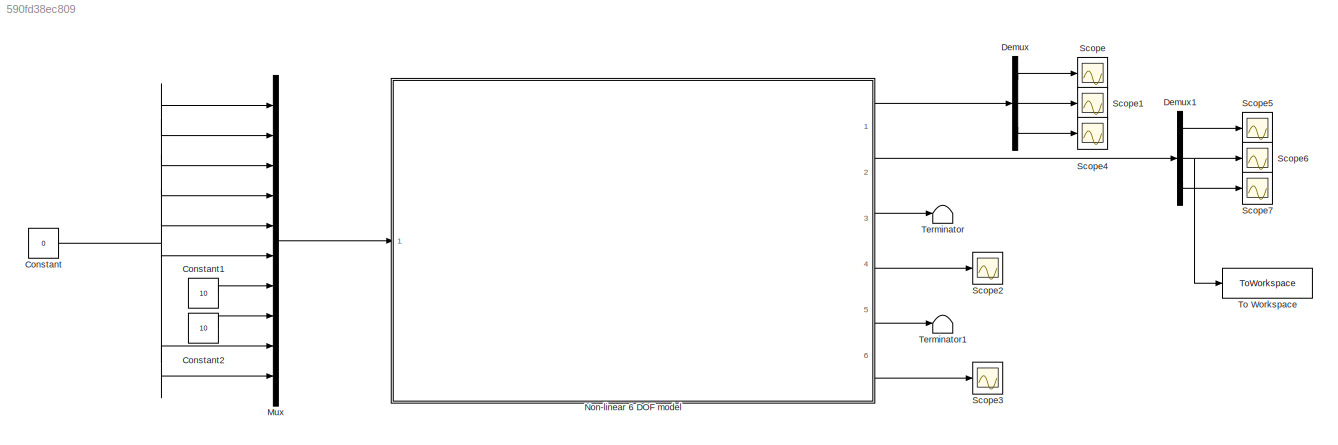
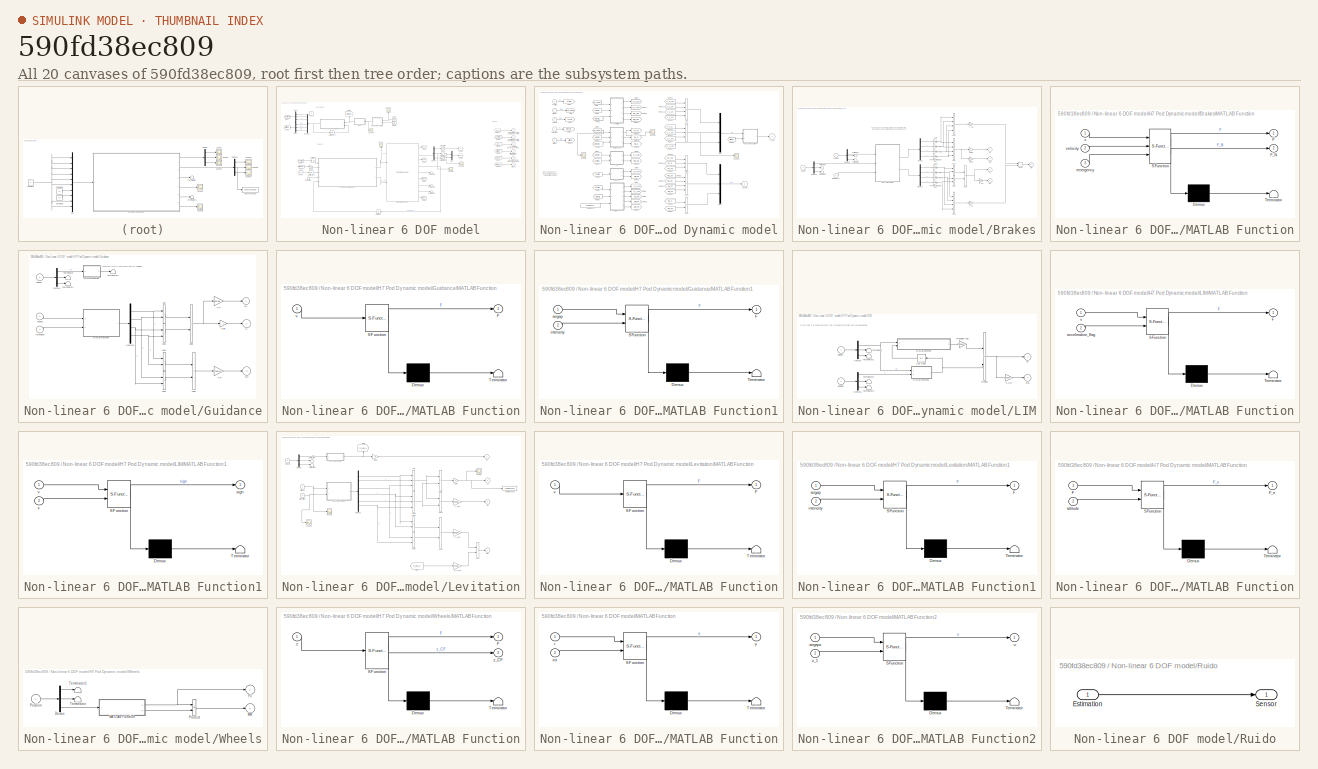
[diagram: thumbnail index - all 20 canvases of the model, root first then tree order]
MODEL slx_590fd38ec809
KIND model
CONFIG AbsTol = auto
CONFIG EnableMultiTasking = off
CONFIG FixedStep = auto
CONFIG MaxStep = 1e-4
CONFIG MinStep = auto
CONFIG RelTol = 1e-7
CONFIG SampleTimeConstraint = Unconstrained
CONFIG SolverName = VariableStepAuto
CONFIG StartTime = 0.0
CONFIG StopTime = 8
BLOCK [Constant] Constant
  Value = 0
BLOCK [Constant] Constant1
  Value = 10
BLOCK [Constant] Constant2
  Value = 10
BLOCK [Demux] Demux
  Outputs = 3
  Ports = [1, 3]
BLOCK [Demux] Demux1
  Outputs = 3
  Ports = [1, 3]
BLOCK [Mux] Mux
  DisplayOption = bar
  Inputs = 10
  Ports = [10, 1]
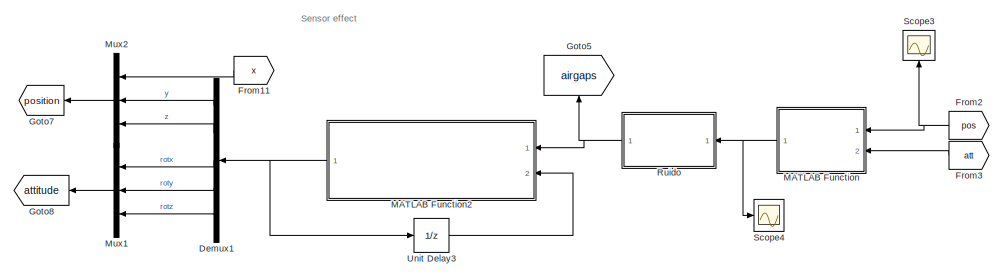
[diagram: Non-linear 6 DOF model - part 1/3, top left region]
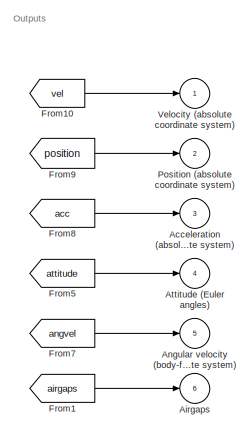
[diagram: Non-linear 6 DOF model - part 2/3, middle right region]
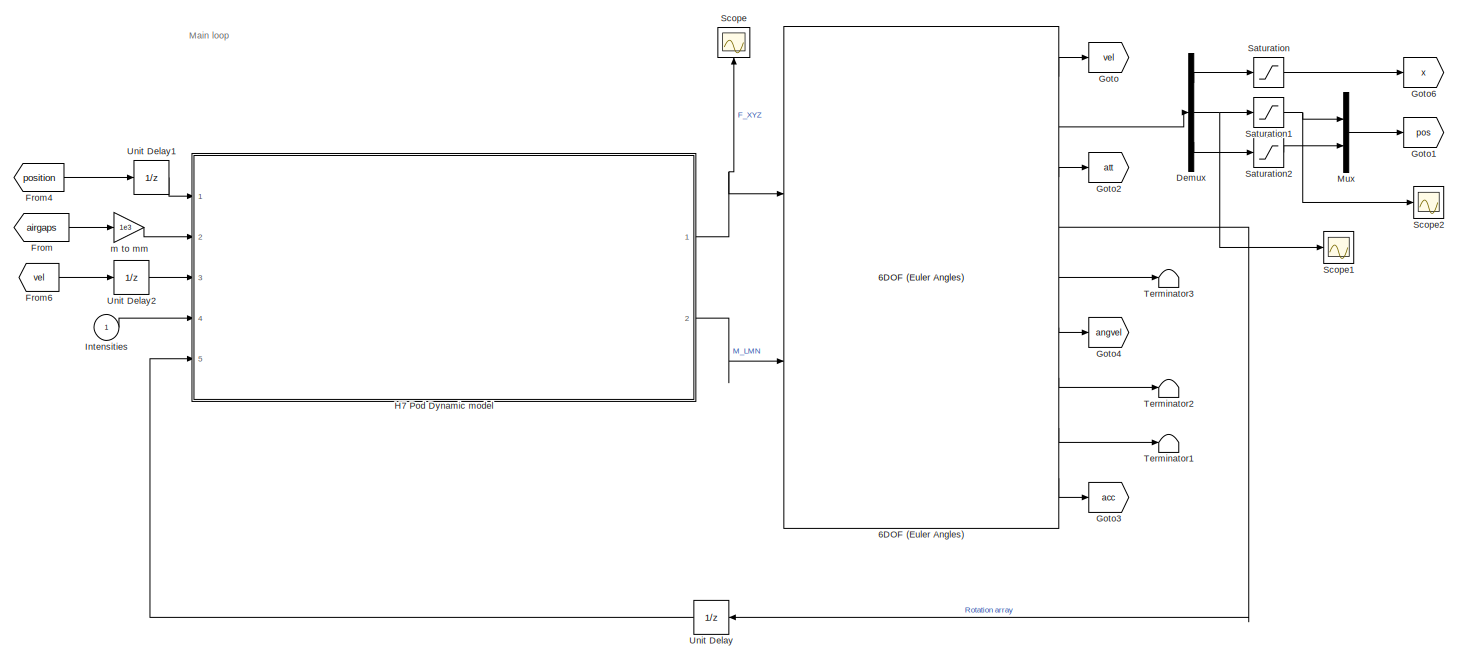
[diagram: Non-linear 6 DOF model - part 3/3, central region]
BLOCK [SubSystem] Non-linear 6 DOF model
  AncestorBlock = libH7_6DOF/Non-linear 6 DOF model
  Ports = [1, 6]
  RequestExecContextInheritance = off
BLOCK [Reference] Non-linear 6 DOF model/6DOF (Euler Angles)  REF=shared6dof/6DOF (Euler Angles)
  Ports = [2, 9]
  SourceBlock = shared6dof/6DOF (Euler Angles)
  SourceProductBaseCode = AE,PW,DR,MT,VE
  SourceType = 6DOF EoM (Body Axis)
BLOCK [Outport] Non-linear 6 DOF model/Acceleration (absolute coordinate system)
  Port = 3
BLOCK [Outport] Non-linear 6 DOF model/Airgaps
  Port = 6
BLOCK [Outport] Non-linear 6 DOF model/Angular velocity (body-fixed coordinate system)
  Port = 5
BLOCK [Outport] Non-linear 6 DOF model/Attitude (Euler angles)
  Port = 4
BLOCK [Demux] Non-linear 6 DOF model/Demux
  Outputs = 3
  Ports = [1, 3]
BLOCK [Demux] Non-linear 6 DOF model/Demux1
  NameLocation = top
  Outputs = 5
  Ports = [1, 5]
BLOCK [From] Non-linear 6 DOF model/From
  GotoTag = airgaps
BLOCK [From] Non-linear 6 DOF model/From1
  GotoTag = airgaps
BLOCK [From] Non-linear 6 DOF model/From10
  GotoTag = vel
BLOCK [From] Non-linear 6 DOF model/From11
  GotoTag = x
  NameLocation = top
BLOCK [From] Non-linear 6 DOF model/From2
  GotoTag = pos
  NameLocation = top
BLOCK [From] Non-linear 6 DOF model/From3
  GotoTag = att
  NameLocation = top
BLOCK [From] Non-linear 6 DOF model/From4
  GotoTag = position
BLOCK [From] Non-linear 6 DOF model/From5
  GotoTag = attitude
BLOCK [From] Non-linear 6 DOF model/From6
  GotoTag = vel
BLOCK [From] Non-linear 6 DOF model/From7
  GotoTag = angvel
BLOCK [From] Non-linear 6 DOF model/From8
  GotoTag = acc
BLOCK [From] Non-linear 6 DOF model/From9
  GotoTag = position
BLOCK [Goto] Non-linear 6 DOF model/Goto
  GotoTag = vel
BLOCK [Goto] Non-linear 6 DOF model/Goto1
  GotoTag = pos
BLOCK [Goto] Non-linear 6 DOF model/Goto2
  GotoTag = att
BLOCK [Goto] Non-linear 6 DOF model/Goto3
  GotoTag = acc
BLOCK [Goto] Non-linear 6 DOF model/Goto4
  GotoTag = angvel
BLOCK [Goto] Non-linear 6 DOF model/Goto5
  GotoTag = airgaps
  NameLocation = right
BLOCK [Goto] Non-linear 6 DOF model/Goto6
  GotoTag = x
BLOCK [Goto] Non-linear 6 DOF model/Goto7
  GotoTag = position
  NameLocation = top
BLOCK [Goto] Non-linear 6 DOF model/Goto8
  GotoTag = attitude
  NameLocation = top
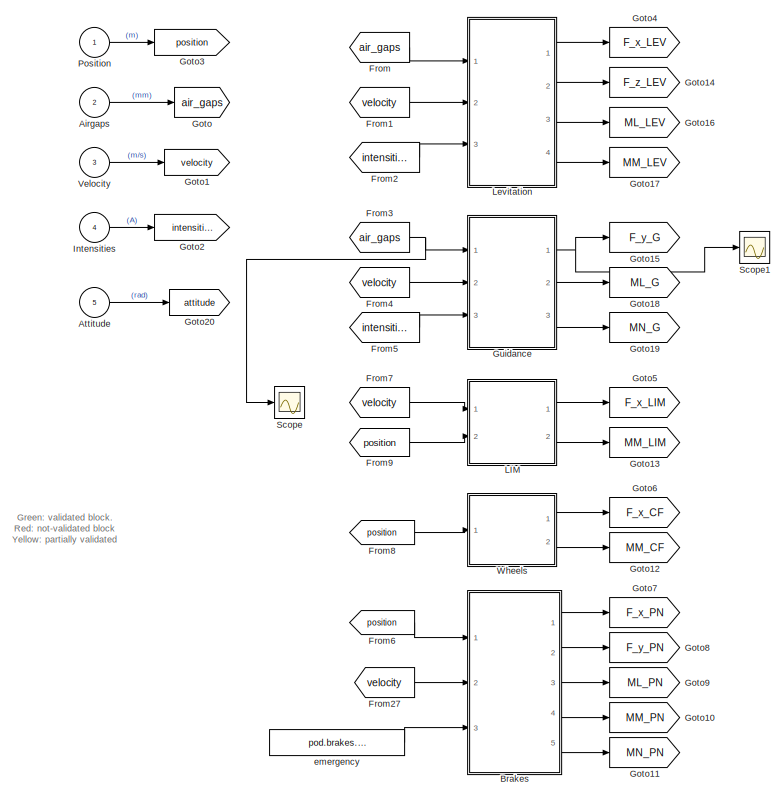
[diagram: Non-linear 6 DOF model/H7 Pod Dynamic model - part 1/2, left side, full height]
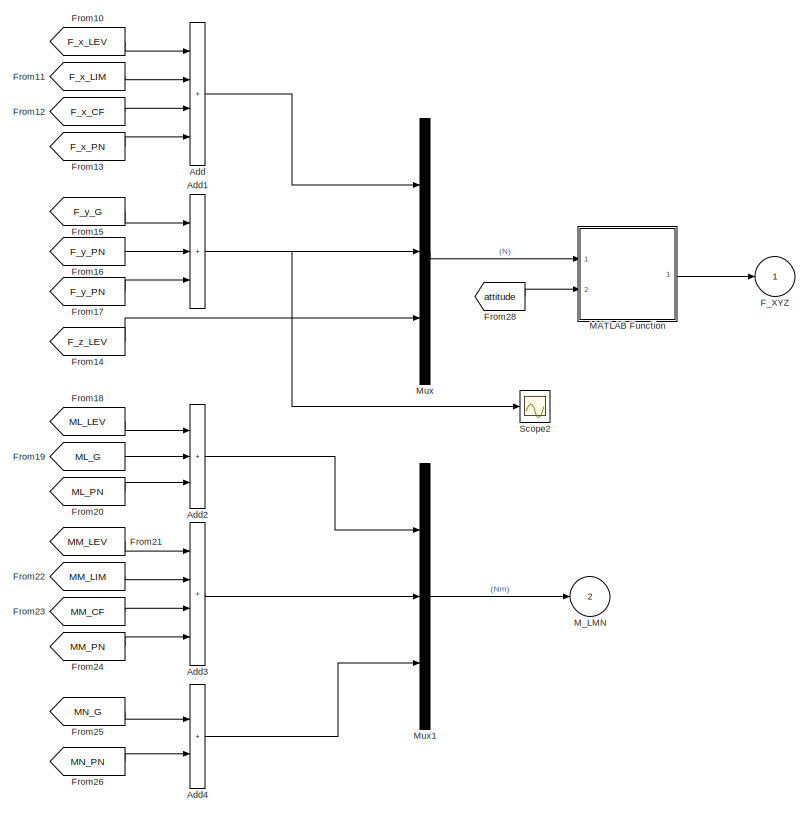
[diagram: Non-linear 6 DOF model/H7 Pod Dynamic model - part 2/2, right side, full height]
BLOCK [SubSystem] Non-linear 6 DOF model/H7 Pod Dynamic model
  AncestorBlock = libH7_6DOF/H7 Pod Dynamic model
  Ports = [5, 2]
  RequestExecContextInheritance = off
BLOCK [Sum] Non-linear 6 DOF model/H7 Pod Dynamic model/Add
  IconShape = rectangular
  Inputs = ++++
  Ports = [4, 1]
BLOCK [Sum] Non-linear 6 DOF model/H7 Pod Dynamic model/Add1
  IconShape = rectangular
  Inputs = +++
  Ports = [3, 1]
BLOCK [Sum] Non-linear 6 DOF model/H7 Pod Dynamic model/Add2
  IconShape = rectangular
  Inputs = +++
  Ports = [3, 1]
BLOCK [Sum] Non-linear 6 DOF model/H7 Pod Dynamic model/Add3
  IconShape = rectangular
  Inputs = ++++
  Ports = [4, 1]
BLOCK [Sum] Non-linear 6 DOF model/H7 Pod Dynamic model/Add4
  IconShape = rectangular
  Ports = [2, 1]
BLOCK [Inport] Non-linear 6 DOF model/H7 Pod Dynamic model/Airgaps
  Port = 2
BLOCK [Inport] Non-linear 6 DOF model/H7 Pod Dynamic model/Attitude
  Port = 5
BLOCK [SubSystem] Non-linear 6 DOF model/H7 Pod Dynamic model/Brakes
  Ports = [3, 5]
  RequestExecContextInheritance = off
BLOCK [Sum] Non-linear 6 DOF model/H7 Pod Dynamic model/Brakes/Add
  IconShape = rectangular
  Inputs = ++++
  Ports = [4, 1]
BLOCK [Sum] Non-linear 6 DOF model/H7 Pod Dynamic model/Brakes/Add1
  IconShape = rectangular
  Ports = [2, 1]
BLOCK [Sum] Non-linear 6 DOF model/H7 Pod Dynamic model/Brakes/Add2
  IconShape = rectangular
  Ports = [2, 1]
BLOCK [Sum] Non-linear 6 DOF model/H7 Pod Dynamic model/Brakes/Add3
  IconShape = rectangular
  Inputs = +-
  Ports = [2, 1]
BLOCK [Sum] Non-linear 6 DOF model/H7 Pod Dynamic model/Brakes/Add4
  IconShape = rectangular
  Inputs = ++--
  Ports = [4, 1]
BLOCK [Sum] Non-linear 6 DOF model/H7 Pod Dynamic model/Brakes/Add5
  IconShape = rectangular
  Inputs = ++--
  Ports = [4, 1]
BLOCK [Sum] Non-linear 6 DOF model/H7 Pod Dynamic model/Brakes/Add6
  IconShape = rectangular
  Ports = [2, 1]
BLOCK [Demux] Non-linear 6 DOF model/H7 Pod Dynamic model/Brakes/Demux
  Ports = [1, 4]
BLOCK [Demux] Non-linear 6 DOF model/H7 Pod Dynamic model/Brakes/Demux1
  Ports = [1, 4]
BLOCK [Demux] Non-linear 6 DOF model/H7 Pod Dynamic model/Brakes/Demux2
  Outputs = 3
  Ports = [1, 3]
BLOCK [Demux] Non-linear 6 DOF model/H7 Pod Dynamic model/Brakes/Demux3
  Outputs = 3
  Ports = [1, 3]
BLOCK [Inport] Non-linear 6 DOF model/H7 Pod Dynamic model/Brakes/Emergency
  Port = 3
BLOCK [Gain] Non-linear 6 DOF model/H7 Pod Dynamic model/Brakes/Functionality gains (0, 1)
  Gain = pod.brakes.working_actuators(4)
BLOCK [Gain] Non-linear 6 DOF model/H7 Pod Dynamic model/Brakes/Functionality gains (0,1)
  Gain = pod.brakes.working_actuators(4)
BLOCK [Outport] Non-linear 6 DOF model/H7 Pod Dynamic model/Brakes/Fx
BLOCK [Outport] Non-linear 6 DOF model/H7 Pod Dynamic model/Brakes/Fy
  Port = 2
BLOCK [Gain] Non-linear 6 DOF model/H7 Pod Dynamic model/Brakes/Gain
  Gain = pod.brakes.working_actuators(1)
BLOCK [Gain] Non-linear 6 DOF model/H7 Pod Dynamic model/Brakes/Gain1
  Gain = pod.brakes.working_actuators(2)
BLOCK [Gain] Non-linear 6 DOF model/H7 Pod Dynamic model/Brakes/Gain2
  Gain = pod.brakes.working_actuators(3)
BLOCK [Gain] Non-linear 6 DOF model/H7 Pod Dynamic model/Brakes/Gain3
  Gain = pod.brakes.working_actuators(1)
BLOCK [Gain] Non-linear 6 DOF model/H7 Pod Dynamic model/Brakes/Gain4
  Gain = pod.brakes.working_actuators(2)
BLOCK [Gain] Non-linear 6 DOF model/H7 Pod Dynamic model/Brakes/Gain5
  Gain = pod.brakes.working_actuators(3)
BLOCK [Gain] Non-linear 6 DOF model/H7 Pod Dynamic model/Brakes/Gain6
  Gain = -1
BLOCK [Gain] Non-linear 6 DOF model/H7 Pod Dynamic model/Brakes/Gain7
  Gain = pod.geometry.z_PN
BLOCK [SubSystem] Non-linear 6 DOF model/H7 Pod Dynamic model/Brakes/MATLAB Function
  ErrorFcn = Stateflow.Translate.translate
  PermitHierarchicalResolution = ExplicitOnly
  Ports = [3, 2]
  RequestExecContextInheritance = off
  SFBlockType = MATLAB Function
  TreatAsAtomicUnit = on
BLOCK [Demux] Non-linear 6 DOF model/H7 Pod Dynamic model/Brakes/MATLAB Function/ Demux 
  Outputs = 1
  Ports = [1, 1]
BLOCK [S-Function] Non-linear 6 DOF model/H7 Pod Dynamic model/Brakes/MATLAB Function/ SFunction 
  EnableBusSupport = off
  FunctionName = sf_sfun
  Parameters = pod
  PortCounts = [3 3]
  Ports = [3, 3]
  SFcnIsStateOwnerBlock = off
  SFunctionDeploymentMode = off
  Tag = Stateflow S-Function 11
BLOCK [Terminator] Non-linear 6 DOF model/H7 Pod Dynamic model/Brakes/MATLAB Function/ Terminator 
BLOCK [Outport] Non-linear 6 DOF model/H7 Pod Dynamic model/Brakes/MATLAB Function/F
BLOCK [Outport] Non-linear 6 DOF model/H7 Pod Dynamic model/Brakes/MATLAB Function/F_N
  Port = 2
BLOCK [Inport] Non-linear 6 DOF model/H7 Pod Dynamic model/Brakes/MATLAB Function/emergency
  Port = 3
BLOCK [Inport] Non-linear 6 DOF model/H7 Pod Dynamic model/Brakes/MATLAB Function/velocity
  Port = 2
BLOCK [Inport] Non-linear 6 DOF model/H7 Pod Dynamic model/Brakes/MATLAB Function/x
BLOCK [Outport] Non-linear 6 DOF model/H7 Pod Dynamic model/Brakes/ML
  Port = 3
BLOCK [Outport] Non-linear 6 DOF model/H7 Pod Dynamic model/Brakes/MM
  Port = 4
BLOCK [Outport] Non-linear 6 DOF model/H7 Pod Dynamic model/Brakes/MN
  Port = 5
BLOCK [Inport] Non-linear 6 DOF model/H7 Pod Dynamic model/Brakes/Position
BLOCK [Terminator] Non-linear 6 DOF model/H7 Pod Dynamic model/Brakes/Terminator
BLOCK [Terminator] Non-linear 6 DOF model/H7 Pod Dynamic model/Brakes/Terminator1
BLOCK [Terminator] Non-linear 6 DOF model/H7 Pod Dynamic model/Brakes/Terminator2
BLOCK [Terminator] Non-linear 6 DOF model/H7 Pod Dynamic model/Brakes/Terminator3
BLOCK [Inport] Non-linear 6 DOF model/H7 Pod Dynamic model/Brakes/velocity
  Port = 2
BLOCK [Gain] Non-linear 6 DOF model/H7 Pod Dynamic model/Brakes/x_PN
  Gain = pod.geometry.x_PN
BLOCK [Gain] Non-linear 6 DOF model/H7 Pod Dynamic model/Brakes/y_PN
  Gain = pod.geometry.y_PN
BLOCK [Gain] Non-linear 6 DOF model/H7 Pod Dynamic model/Brakes/z_PN
  Gain = pod.geometry.z_PN
BLOCK [Outport] Non-linear 6 DOF model/H7 Pod Dynamic model/F_XYZ
BLOCK [From] Non-linear 6 DOF model/H7 Pod Dynamic model/From
  GotoTag = air_gaps
BLOCK [From] Non-linear 6 DOF model/H7 Pod Dynamic model/From1
  GotoTag = velocity
BLOCK [From] Non-linear 6 DOF model/H7 Pod Dynamic model/From10
  GotoTag = F_x_LEV
BLOCK [From] Non-linear 6 DOF model/H7 Pod Dynamic model/From11
  GotoTag = F_x_LIM
BLOCK [From] Non-linear 6 DOF model/H7 Pod Dynamic model/From12
  Commented = on
  GotoTag = F_x_CF
BLOCK [From] Non-linear 6 DOF model/H7 Pod Dynamic model/From13
  GotoTag = F_x_PN
BLOCK [From] Non-linear 6 DOF model/H7 Pod Dynamic model/From14
  GotoTag = F_z_LEV
BLOCK [From] Non-linear 6 DOF model/H7 Pod Dynamic model/From15
  GotoTag = F_y_G
BLOCK [From] Non-linear 6 DOF model/H7 Pod Dynamic model/From16
  GotoTag = F_y_PN
BLOCK [From] Non-linear 6 DOF model/H7 Pod Dynamic model/From17
  Commented = on
  GotoTag = F_y_PN
BLOCK [From] Non-linear 6 DOF model/H7 Pod Dynamic model/From18
  GotoTag = ML_LEV
BLOCK [From] Non-linear 6 DOF model/H7 Pod Dynamic model/From19
  GotoTag = ML_G
BLOCK [From] Non-linear 6 DOF model/H7 Pod Dynamic model/From2
  GotoTag = intensities
BLOCK [From] Non-linear 6 DOF model/H7 Pod Dynamic model/From20
  GotoTag = ML_PN
BLOCK [From] Non-linear 6 DOF model/H7 Pod Dynamic model/From21
  GotoTag = MM_LEV
BLOCK [From] Non-linear 6 DOF model/H7 Pod Dynamic model/From22
  GotoTag = MM_LIM
BLOCK [From] Non-linear 6 DOF model/H7 Pod Dynamic model/From23
  Commented = on
  GotoTag = MM_CF
BLOCK [From] Non-linear 6 DOF model/H7 Pod Dynamic model/From24
  GotoTag = MM_PN
BLOCK [From] Non-linear 6 DOF model/H7 Pod Dynamic model/From25
  GotoTag = MN_G
BLOCK [From] Non-linear 6 DOF model/H7 Pod Dynamic model/From26
  GotoTag = MN_PN
BLOCK [From] Non-linear 6 DOF model/H7 Pod Dynamic model/From27
  GotoTag = velocity
BLOCK [From] Non-linear 6 DOF model/H7 Pod Dynamic model/From28
  GotoTag = attitude
BLOCK [From] Non-linear 6 DOF model/H7 Pod Dynamic model/From3
  GotoTag = air_gaps
BLOCK [From] Non-linear 6 DOF model/H7 Pod Dynamic model/From4
  GotoTag = velocity
BLOCK [From] Non-linear 6 DOF model/H7 Pod Dynamic model/From5
  GotoTag = intensities
BLOCK [From] Non-linear 6 DOF model/H7 Pod Dynamic model/From6
  GotoTag = position
BLOCK [From] Non-linear 6 DOF model/H7 Pod Dynamic model/From7
  GotoTag = velocity
BLOCK [From] Non-linear 6 DOF model/H7 Pod Dynamic model/From8
  Commented = on
  GotoTag = position
BLOCK [From] Non-linear 6 DOF model/H7 Pod Dynamic model/From9
  GotoTag = position
BLOCK [Goto] Non-linear 6 DOF model/H7 Pod Dynamic model/Goto
  GotoTag = air_gaps
BLOCK [Goto] Non-linear 6 DOF model/H7 Pod Dynamic model/Goto1
  GotoTag = velocity
BLOCK [Goto] Non-linear 6 DOF model/H7 Pod Dynamic model/Goto10
  GotoTag = MM_PN
BLOCK [Goto] Non-linear 6 DOF model/H7 Pod Dynamic model/Goto11
  GotoTag = MN_PN
BLOCK [Goto] Non-linear 6 DOF model/H7 Pod Dynamic model/Goto12
  Commented = on
  GotoTag = MM_CF
BLOCK [Goto] Non-linear 6 DOF model/H7 Pod Dynamic model/Goto13
  GotoTag = MM_LIM
BLOCK [Goto] Non-linear 6 DOF model/H7 Pod Dynamic model/Goto14
  GotoTag = F_z_LEV
BLOCK [Goto] Non-linear 6 DOF model/H7 Pod Dynamic model/Goto15
  GotoTag = F_y_G
BLOCK [Goto] Non-linear 6 DOF model/H7 Pod Dynamic model/Goto16
  GotoTag = ML_LEV
BLOCK [Goto] Non-linear 6 DOF model/H7 Pod Dynamic model/Goto17
  GotoTag = MM_LEV
BLOCK [Goto] Non-linear 6 DOF model/H7 Pod Dynamic model/Goto18
  GotoTag = ML_G
BLOCK [Goto] Non-linear 6 DOF model/H7 Pod Dynamic model/Goto19
  GotoTag = MN_G
BLOCK [Goto] Non-linear 6 DOF model/H7 Pod Dynamic model/Goto2
  GotoTag = intensities
BLOCK [Goto] Non-linear 6 DOF model/H7 Pod Dynamic model/Goto20
  GotoTag = attitude
BLOCK [Goto] Non-linear 6 DOF model/H7 Pod Dynamic model/Goto3
  GotoTag = position
BLOCK [Goto] Non-linear 6 DOF model/H7 Pod Dynamic model/Goto4
  GotoTag = F_x_LEV
BLOCK [Goto] Non-linear 6 DOF model/H7 Pod Dynamic model/Goto5
  GotoTag = F_x_LIM
BLOCK [Goto] Non-linear 6 DOF model/H7 Pod Dynamic model/Goto6
  Commented = on
  GotoTag = F_x_CF
BLOCK [Goto] Non-linear 6 DOF model/H7 Pod Dynamic model/Goto7
  GotoTag = F_x_PN
BLOCK [Goto] Non-linear 6 DOF model/H7 Pod Dynamic model/Goto8
  GotoTag = F_y_PN
BLOCK [Goto] Non-linear 6 DOF model/H7 Pod Dynamic model/Goto9
  GotoTag = ML_PN
BLOCK [SubSystem] Non-linear 6 DOF model/H7 Pod Dynamic model/Guidance
  Ports = [3, 3]
  RequestExecContextInheritance = off
BLOCK [Gain] Non-linear 6 DOF model/H7 Pod Dynamic model/Guidance/- x_G
  Gain = - pod.geometry.x_G
BLOCK [Sum] Non-linear 6 DOF model/H7 Pod Dynamic model/Guidance/Add
  IconShape = rectangular
  Ports = [2, 1]
BLOCK [Sum] Non-linear 6 DOF model/H7 Pod Dynamic model/Guidance/Add1
  IconShape = rectangular
  Ports = [2, 1]
BLOCK [Sum] Non-linear 6 DOF model/H7 Pod Dynamic model/Guidance/Add2
  IconShape = rectangular
  Inputs = +-
  Ports = [2, 1]
BLOCK [Sum] Non-linear 6 DOF model/H7 Pod Dynamic model/Guidance/Add3
  IconShape = rectangular
  Ports = [2, 1]
BLOCK [Sum] Non-linear 6 DOF model/H7 Pod Dynamic model/Guidance/Add4
  IconShape = rectangular
  Ports = [2, 1]
BLOCK [Sum] Non-linear 6 DOF model/H7 Pod Dynamic model/Guidance/Add5
  IconShape = rectangular
  Inputs = +-
  Ports = [2, 1]
BLOCK [Inport] Non-linear 6 DOF model/H7 Pod Dynamic model/Guidance/Airgaps
BLOCK [Demux] Non-linear 6 DOF model/H7 Pod Dynamic model/Guidance/Demux
  Outputs = 3
  Ports = [1, 3]
BLOCK [Demux] Non-linear 6 DOF model/H7 Pod Dynamic model/Guidance/Demux1
  Ports = [1, 4]
BLOCK [Outport] Non-linear 6 DOF model/H7 Pod Dynamic model/Guidance/Fy
BLOCK [Gain] Non-linear 6 DOF model/H7 Pod Dynamic model/Guidance/Gain
  Gain = -1
BLOCK [Inport] Non-linear 6 DOF model/H7 Pod Dynamic model/Guidance/Intensities
  Port = 3
BLOCK [SubSystem] Non-linear 6 DOF model/H7 Pod Dynamic model/Guidance/MATLAB Function
  ErrorFcn = Stateflow.Translate.translate
  PermitHierarchicalResolution = ExplicitOnly
  Ports = [1, 1]
  RequestExecContextInheritance = off
  SFBlockType = MATLAB Function
  TreatAsAtomicUnit = on
BLOCK [Demux] Non-linear 6 DOF model/H7 Pod Dynamic model/Guidance/MATLAB Function/ Demux 
  Outputs = 1
  Ports = [1, 1]
BLOCK [S-Function] Non-linear 6 DOF model/H7 Pod Dynamic model/Guidance/MATLAB Function/ SFunction 
  EnableBusSupport = off
  FunctionName = sf_sfun
  PortCounts = [1 2]
  Ports = [1, 2]
  SFcnIsStateOwnerBlock = off
  SFunctionDeploymentMode = off
  Tag = Stateflow S-Function 4
BLOCK [Terminator] Non-linear 6 DOF model/H7 Pod Dynamic model/Guidance/MATLAB Function/ Terminator 
BLOCK [Outport] Non-linear 6 DOF model/H7 Pod Dynamic model/Guidance/MATLAB Function/F
BLOCK [Inport] Non-linear 6 DOF model/H7 Pod Dynamic model/Guidance/MATLAB Function/v
BLOCK [SubSystem] Non-linear 6 DOF model/H7 Pod Dynamic model/Guidance/MATLAB Function1
  ErrorFcn = Stateflow.Translate.translate
  PermitHierarchicalResolution = ExplicitOnly
  Ports = [2, 1]
  RequestExecContextInheritance = off
  SFBlockType = MATLAB Function
  TreatAsAtomicUnit = on
BLOCK [Demux] Non-linear 6 DOF model/H7 Pod Dynamic model/Guidance/MATLAB Function1/ Demux 
  Outputs = 1
  Ports = [1, 1]
BLOCK [S-Function] Non-linear 6 DOF model/H7 Pod Dynamic model/Guidance/MATLAB Function1/ SFunction 
  EnableBusSupport = off
  FunctionName = sf_sfun
  Parameters = pod
  PortCounts = [2 2]
  Ports = [2, 2]
  SFcnIsStateOwnerBlock = off
  SFunctionDeploymentMode = off
  Tag = Stateflow S-Function 5
BLOCK [Terminator] Non-linear 6 DOF model/H7 Pod Dynamic model/Guidance/MATLAB Function1/ Terminator 
BLOCK [Outport] Non-linear 6 DOF model/H7 Pod Dynamic model/Guidance/MATLAB Function1/F
BLOCK [Inport] Non-linear 6 DOF model/H7 Pod Dynamic model/Guidance/MATLAB Function1/airgap
BLOCK [Inport] Non-linear 6 DOF model/H7 Pod Dynamic model/Guidance/MATLAB Function1/intensity
  Port = 2
BLOCK [Outport] Non-linear 6 DOF model/H7 Pod Dynamic model/Guidance/ML
  Port = 2
BLOCK [Outport] Non-linear 6 DOF model/H7 Pod Dynamic model/Guidance/MN
  Port = 3
BLOCK [Terminator] Non-linear 6 DOF model/H7 Pod Dynamic model/Guidance/Terminator
BLOCK [Terminator] Non-linear 6 DOF model/H7 Pod Dynamic model/Guidance/Terminator1
BLOCK [Terminator] Non-linear 6 DOF model/H7 Pod Dynamic model/Guidance/Terminator2
BLOCK [Inport] Non-linear 6 DOF model/H7 Pod Dynamic model/Guidance/Velocity
  Port = 2
BLOCK [Gain] Non-linear 6 DOF model/H7 Pod Dynamic model/Guidance/z_G
  Gain = pod.geometry.z_G
BLOCK [Inport] Non-linear 6 DOF model/H7 Pod Dynamic model/Intensities
  Port = 4
BLOCK [SubSystem] Non-linear 6 DOF model/H7 Pod Dynamic model/LIM
  Ports = [2, 2]
  RequestExecContextInheritance = off
BLOCK [Demux] Non-linear 6 DOF model/H7 Pod Dynamic model/LIM/Demux
  Outputs = 3
  Ports = [1, 3]
BLOCK [Demux] Non-linear 6 DOF model/H7 Pod Dynamic model/LIM/Demux1
  Outputs = 3
  Ports = [1, 3]
BLOCK [Outport] Non-linear 6 DOF model/H7 Pod Dynamic model/LIM/Fx
BLOCK [SubSystem] Non-linear 6 DOF model/H7 Pod Dynamic model/LIM/MATLAB Function
  ErrorFcn = Stateflow.Translate.translate
  PermitHierarchicalResolution = ExplicitOnly
  Ports = [2, 1]
  RequestExecContextInheritance = off
  SFBlockType = MATLAB Function
  TreatAsAtomicUnit = on
BLOCK [Demux] Non-linear 6 DOF model/H7 Pod Dynamic model/LIM/MATLAB Function/ Demux 
  Outputs = 1
  Ports = [1, 1]
BLOCK [S-Function] Non-linear 6 DOF model/H7 Pod Dynamic model/LIM/MATLAB Function/ SFunction 
  EnableBusSupport = off
  FunctionName = sf_sfun
  Parameters = pod
  PortCounts = [2 2]
  Ports = [2, 2]
  SFcnIsStateOwnerBlock = off
  SFunctionDeploymentMode = off
  Tag = Stateflow S-Function 6
BLOCK [Terminator] Non-linear 6 DOF model/H7 Pod Dynamic model/LIM/MATLAB Function/ Terminator 
BLOCK [Outport] Non-linear 6 DOF model/H7 Pod Dynamic model/LIM/MATLAB Function/F
BLOCK [Inport] Non-linear 6 DOF model/H7 Pod Dynamic model/LIM/MATLAB Function/acceleration_flag
  Port = 2
BLOCK [Inport] Non-linear 6 DOF model/H7 Pod Dynamic model/LIM/MATLAB Function/v
BLOCK [SubSystem] Non-linear 6 DOF model/H7 Pod Dynamic model/LIM/MATLAB Function1
  ErrorFcn = Stateflow.Translate.translate
  PermitHierarchicalResolution = ExplicitOnly
  Ports = [2, 1]
  RequestExecContextInheritance = off
  SFBlockType = MATLAB Function
  TreatAsAtomicUnit = on
BLOCK [Demux] Non-linear 6 DOF model/H7 Pod Dynamic model/LIM/MATLAB Function1/ Demux 
  Outputs = 1
  Ports = [1, 1]
BLOCK [S-Function] Non-linear 6 DOF model/H7 Pod Dynamic model/LIM/MATLAB Function1/ SFunction 
  EnableBusSupport = off
  FunctionName = sf_sfun
  Parameters = pod
  PortCounts = [2 2]
  Ports = [2, 2]
  SFcnIsStateOwnerBlock = off
  SFunctionDeploymentMode = off
  Tag = Stateflow S-Function 7
BLOCK [Terminator] Non-linear 6 DOF model/H7 Pod Dynamic model/LIM/MATLAB Function1/ Terminator 
BLOCK [Outport] Non-linear 6 DOF model/H7 Pod Dynamic model/LIM/MATLAB Function1/sign
BLOCK [Inport] Non-linear 6 DOF model/H7 Pod Dynamic model/LIM/MATLAB Function1/v
BLOCK [Inport] Non-linear 6 DOF model/H7 Pod Dynamic model/LIM/MATLAB Function1/x
  Port = 2
BLOCK [Outport] Non-linear 6 DOF model/H7 Pod Dynamic model/LIM/MM
  Port = 2
BLOCK [Inport] Non-linear 6 DOF model/H7 Pod Dynamic model/LIM/Position
  Port = 2
BLOCK [Product] Non-linear 6 DOF model/H7 Pod Dynamic model/LIM/Product
  Ports = [2, 1]
BLOCK [Gain] Non-linear 6 DOF model/H7 Pod Dynamic model/LIM/Propulsion flag
  Gain = pod.general.propulsion_on
BLOCK [Terminator] Non-linear 6 DOF model/H7 Pod Dynamic model/LIM/Terminator
BLOCK [Terminator] Non-linear 6 DOF model/H7 Pod Dynamic model/LIM/Terminator1
BLOCK [Terminator] Non-linear 6 DOF model/H7 Pod Dynamic model/LIM/Terminator2
BLOCK [Terminator] Non-linear 6 DOF model/H7 Pod Dynamic model/LIM/Terminator3
BLOCK [UnitDelay] Non-linear 6 DOF model/H7 Pod Dynamic model/LIM/Unit Delay
  HasFrameUpgradeWarning = on
  InitialCondition = 1
  SampleTime = -1
BLOCK [Inport] Non-linear 6 DOF model/H7 Pod Dynamic model/LIM/Velocity
BLOCK [Gain] Non-linear 6 DOF model/H7 Pod Dynamic model/LIM/z_LIM
  Gain = pod.geometry.z_LIM
BLOCK [SubSystem] Non-linear 6 DOF model/H7 Pod Dynamic model/Levitation
  Ports = [3, 4]
  RequestExecContextInheritance = off
BLOCK [Gain] Non-linear 6 DOF model/H7 Pod Dynamic model/Levitation/- y_LEV
  Gain = - pod.geometry.y_LEV
BLOCK [Gain] Non-linear 6 DOF model/H7 Pod Dynamic model/Levitation/6 * z_LEV
  Gain = 6 * pod.geometry.z_LEV
BLOCK [Sum] Non-linear 6 DOF model/H7 Pod Dynamic model/Levitation/Add
  IconShape = rectangular
  Inputs = +++
  Ports = [3, 1]
BLOCK [Sum] Non-linear 6 DOF model/H7 Pod Dynamic model/Levitation/Add1
  IconShape = rectangular
  Inputs = +++
  Ports = [3, 1]
BLOCK [Sum] Non-linear 6 DOF model/H7 Pod Dynamic model/Levitation/Add2
  IconShape = rectangular
  Ports = [2, 1]
BLOCK [Sum] Non-linear 6 DOF model/H7 Pod Dynamic model/Levitation/Add3
  IconShape = rectangular
  Inputs = +-
  Ports = [2, 1]
BLOCK [Sum] Non-linear 6 DOF model/H7 Pod Dynamic model/Levitation/Add4
  IconShape = rectangular
  Ports = [2, 1]
BLOCK [Sum] Non-linear 6 DOF model/H7 Pod Dynamic model/Levitation/Add5
  IconShape = rectangular
  Ports = [2, 1]
BLOCK [Sum] Non-linear 6 DOF model/H7 Pod Dynamic model/Levitation/Add6
  IconShape = rectangular
  Inputs = +-
  Ports = [2, 1]
BLOCK [Sum] Non-linear 6 DOF model/H7 Pod Dynamic model/Levitation/Add7
  IconShape = rectangular
  Ports = [2, 1]
BLOCK [Inport] Non-linear 6 DOF model/H7 Pod Dynamic model/Levitation/Airgaps
BLOCK [Demux] Non-linear 6 DOF model/H7 Pod Dynamic model/Levitation/Demux
  Outputs = 3
  Ports = [1, 3]
BLOCK [Demux] Non-linear 6 DOF model/H7 Pod Dynamic model/Levitation/Demux1
  Outputs = 6
  Ports = [1, 6]
BLOCK [From] Non-linear 6 DOF model/H7 Pod Dynamic model/Levitation/From
  GotoTag = F_LEV_X
BLOCK [Outport] Non-linear 6 DOF model/H7 Pod Dynamic model/Levitation/Fx
BLOCK [Outport] Non-linear 6 DOF model/H7 Pod Dynamic model/Levitation/Fz
  Port = 2
BLOCK [Gain] Non-linear 6 DOF model/H7 Pod Dynamic model/Levitation/Gain
  Gain = -1
BLOCK [Gain] Non-linear 6 DOF model/H7 Pod Dynamic model/Levitation/Gain1
  Gain = -6
BLOCK [Goto] Non-linear 6 DOF model/H7 Pod Dynamic model/Levitation/Goto
  GotoTag = F_LEV_X
  NameLocation = right
BLOCK [Inport] Non-linear 6 DOF model/H7 Pod Dynamic model/Levitation/Intensities
  Port = 3
BLOCK [SubSystem] Non-linear 6 DOF model/H7 Pod Dynamic model/Levitation/MATLAB Function
  ErrorFcn = Stateflow.Translate.translate
  PermitHierarchicalResolution = ExplicitOnly
  Ports = [1, 1]
  RequestExecContextInheritance = off
  SFBlockType = MATLAB Function
  TreatAsAtomicUnit = on
BLOCK [Demux] Non-linear 6 DOF model/H7 Pod Dynamic model/Levitation/MATLAB Function/ Demux 
  Outputs = 1
  Ports = [1, 1]
BLOCK [S-Function] Non-linear 6 DOF model/H7 Pod Dynamic model/Levitation/MATLAB Function/ SFunction 
  EnableBusSupport = off
  FunctionName = sf_sfun
  Parameters = pod
  PortCounts = [1 2]
  Ports = [1, 2]
  SFcnIsStateOwnerBlock = off
  SFunctionDeploymentMode = off
  Tag = Stateflow S-Function 3
BLOCK [Terminator] Non-linear 6 DOF model/H7 Pod Dynamic model/Levitation/MATLAB Function/ Terminator 
BLOCK [Outport] Non-linear 6 DOF model/H7 Pod Dynamic model/Levitation/MATLAB Function/F
BLOCK [Inport] Non-linear 6 DOF model/H7 Pod Dynamic model/Levitation/MATLAB Function/v
BLOCK [SubSystem] Non-linear 6 DOF model/H7 Pod Dynamic model/Levitation/MATLAB Function1
  ErrorFcn = Stateflow.Translate.translate
  PermitHierarchicalResolution = ExplicitOnly
  Ports = [2, 1]
  RequestExecContextInheritance = off
  SFBlockType = MATLAB Function
  TreatAsAtomicUnit = on
BLOCK [Demux] Non-linear 6 DOF model/H7 Pod Dynamic model/Levitation/MATLAB Function1/ Demux 
  Outputs = 1
  Ports = [1, 1]
BLOCK [S-Function] Non-linear 6 DOF model/H7 Pod Dynamic model/Levitation/MATLAB Function1/ SFunction 
  EnableBusSupport = off
  FunctionName = sf_sfun
  Parameters = pod
  PortCounts = [2 2]
  Ports = [2, 2]
  SFcnIsStateOwnerBlock = off
  SFunctionDeploymentMode = off
  Tag = Stateflow S-Function 8
BLOCK [Terminator] Non-linear 6 DOF model/H7 Pod Dynamic model/Levitation/MATLAB Function1/ Terminator 
BLOCK [Outport] Non-linear 6 DOF model/H7 Pod Dynamic model/Levitation/MATLAB Function1/F
BLOCK [Inport] Non-linear 6 DOF model/H7 Pod Dynamic model/Levitation/MATLAB Function1/airgap
BLOCK [Inport] Non-linear 6 DOF model/H7 Pod Dynamic model/Levitation/MATLAB Function1/intensity
  Port = 2
BLOCK [Outport] Non-linear 6 DOF model/H7 Pod Dynamic model/Levitation/ML
  Port = 3
BLOCK [Outport] Non-linear 6 DOF model/H7 Pod Dynamic model/Levitation/MM
  Port = 4
BLOCK [Scope] Non-linear 6 DOF model/H7 Pod Dynamic model/Levitation/Scope
  Floating = off
  NumInputPorts = 1
  Ports = [1]
  ScopeSpecificationString = Simulink.scopes.TimeScopeBlockCfg('CurrentConfiguration', extmgr.ConfigurationSet(extmgr.Configuration('Core','General UI',true),extmgr.Configuration('Core','Source UI',true),extmgr.Configuration('Sources','WiredSimulink',true,'DataLoggingVariableName','ScopeData15'),extmgr.Configuration('Visuals','Time Domain',true,'SerializedDisplays',{struct('MinYLimReal','-2171.032','MaxYLimReal','-171.032','Y...<+1374ch>
BLOCK [Scope] Non-linear 6 DOF model/H7 Pod Dynamic model/Levitation/Scope1
  Floating = off
  NumInputPorts = 1
  Ports = [1]
  ScopeSpecificationString = Simulink.scopes.TimeScopeBlockCfg('CurrentConfiguration', extmgr.ConfigurationSet(extmgr.Configuration('Core','General UI',true),extmgr.Configuration('Core','Source UI',true),extmgr.Configuration('Sources','WiredSimulink',true,'DataLoggingVariableName','ScopeData16'),extmgr.Configuration('Visuals','Time Domain',true,'SerializedDisplays',{struct('MinYLimReal','8.00000','MaxYLimReal','28.00000','YLa...<+1840ch>
BLOCK [Scope] Non-linear 6 DOF model/H7 Pod Dynamic model/Levitation/Scope2
  Floating = off
  NumInputPorts = 1
  Ports = [1]
  ScopeSpecificationString = Simulink.scopes.TimeScopeBlockCfg('CurrentConfiguration', extmgr.ConfigurationSet(extmgr.Configuration('Core','General UI',true),extmgr.Configuration('Core','Source UI',true),extmgr.Configuration('Sources','WiredSimulink',true,'DataLoggingVariableName','ScopeData17'),extmgr.Configuration('Visuals','Time Domain',true,'SerializedDisplays',{struct('MinYLimReal','-1.00000','MaxYLimReal','1.00000','YLa...<+1878ch>
BLOCK [Terminator] Non-linear 6 DOF model/H7 Pod Dynamic model/Levitation/Terminator
BLOCK [Terminator] Non-linear 6 DOF model/H7 Pod Dynamic model/Levitation/Terminator1
BLOCK [ToWorkspace] Non-linear 6 DOF model/H7 Pod Dynamic model/Levitation/To Workspace
  FixptAsFi = on
  MaxDataPoints = inf
  Ports = [1]
  SampleTime = -1
  SaveFormat = Timeseries
  VariableName = F_LEV
BLOCK [Inport] Non-linear 6 DOF model/H7 Pod Dynamic model/Levitation/Velocity
  Port = 2
BLOCK [Gain] Non-linear 6 DOF model/H7 Pod Dynamic model/Levitation/x_LEV
  Gain = pod.geometry.x_LEV
BLOCK [SubSystem] Non-linear 6 DOF model/H7 Pod Dynamic model/MATLAB Function
  ErrorFcn = Stateflow.Translate.translate
  PermitHierarchicalResolution = ExplicitOnly
  Ports = [2, 1]
  RequestExecContextInheritance = off
  SFBlockType = MATLAB Function
  TreatAsAtomicUnit = on
BLOCK [Demux] Non-linear 6 DOF model/H7 Pod Dynamic model/MATLAB Function/ Demux 
  Outputs = 1
  Ports = [1, 1]
BLOCK [S-Function] Non-linear 6 DOF model/H7 Pod Dynamic model/MATLAB Function/ SFunction 
  EnableBusSupport = off
  FunctionName = sf_sfun
  Parameters = pod
  PortCounts = [2 2]
  Ports = [2, 2]
  SFcnIsStateOwnerBlock = off
  SFunctionDeploymentMode = off
  Tag = Stateflow S-Function 9
BLOCK [Terminator] Non-linear 6 DOF model/H7 Pod Dynamic model/MATLAB Function/ Terminator 
BLOCK [Inport] Non-linear 6 DOF model/H7 Pod Dynamic model/MATLAB Function/F
BLOCK [Outport] Non-linear 6 DOF model/H7 Pod Dynamic model/MATLAB Function/F_e
BLOCK [Inport] Non-linear 6 DOF model/H7 Pod Dynamic model/MATLAB Function/attitude
  Port = 2
BLOCK [Outport] Non-linear 6 DOF model/H7 Pod Dynamic model/M_LMN
  Port = 2
BLOCK [Mux] Non-linear 6 DOF model/H7 Pod Dynamic model/Mux
  DisplayOption = bar
  Inputs = 3
  Ports = [3, 1]
BLOCK [Mux] Non-linear 6 DOF model/H7 Pod Dynamic model/Mux1
  DisplayOption = bar
  Inputs = 3
  Ports = [3, 1]
BLOCK [Inport] Non-linear 6 DOF model/H7 Pod Dynamic model/Position
BLOCK [Scope] Non-linear 6 DOF model/H7 Pod Dynamic model/Scope
  Floating = off
  NumInputPorts = 1
  Ports = [1]
  ScopeSpecificationString = Simulink.scopes.TimeScopeBlockCfg('CurrentConfiguration', extmgr.ConfigurationSet(extmgr.Configuration('Core','General UI',true),extmgr.Configuration('Core','Source UI',true),extmgr.Configuration('Sources','WiredSimulink',true,'DataLoggingVariableName','ScopeData2'),extmgr.Configuration('Visuals','Time Domain',true,'SerializedDisplays',{struct('MinYLimReal','-30','MaxYLimReal','30','YLabelReal',''...<+1736ch>
BLOCK [Scope] Non-linear 6 DOF model/H7 Pod Dynamic model/Scope1
  Floating = off
  NumInputPorts = 1
  Ports = [1]
  ScopeSpecificationString = Simulink.scopes.TimeScopeBlockCfg('CurrentConfiguration', extmgr.ConfigurationSet(extmgr.Configuration('Core','General UI',true),extmgr.Configuration('Core','Source UI',true),extmgr.Configuration('Sources','WiredSimulink',true,'DataLoggingVariableName','ScopeData3'),extmgr.Configuration('Visuals','Time Domain',true,'SerializedDisplays',{struct('MinYLimReal','-61.147','MaxYLimReal','-29.717','YLabe...<+1365ch>
BLOCK [Scope] Non-linear 6 DOF model/H7 Pod Dynamic model/Scope2
  Floating = off
  NumInputPorts = 1
  Ports = [1]
  ScopeSpecificationString = Simulink.scopes.TimeScopeBlockCfg('CurrentConfiguration', extmgr.ConfigurationSet(extmgr.Configuration('Core','General UI',true),extmgr.Configuration('Core','Source UI',true),extmgr.Configuration('Sources','WiredSimulink',true,'DataLoggingVariableName','ScopeData4'),extmgr.Configuration('Visuals','Time Domain',true,'SerializedDisplays',{struct('MinYLimReal','-61.147','MaxYLimReal','-29.717','YLabe...<+1359ch>
BLOCK [Inport] Non-linear 6 DOF model/H7 Pod Dynamic model/Velocity
  Port = 3
BLOCK [SubSystem] Non-linear 6 DOF model/H7 Pod Dynamic model/Wheels
  Commented = on
  Ports = [1, 2]
  RequestExecContextInheritance = off
BLOCK [Demux] Non-linear 6 DOF model/H7 Pod Dynamic model/Wheels/Demux
  Outputs = 3
  Ports = [1, 3]
BLOCK [Outport] Non-linear 6 DOF model/H7 Pod Dynamic model/Wheels/Fx
BLOCK [SubSystem] Non-linear 6 DOF model/H7 Pod Dynamic model/Wheels/MATLAB Function
  ErrorFcn = Stateflow.Translate.translate
  PermitHierarchicalResolution = ExplicitOnly
  Ports = [1, 2]
  RequestExecContextInheritance = off
  SFBlockType = MATLAB Function
  TreatAsAtomicUnit = on
BLOCK [Demux] Non-linear 6 DOF model/H7 Pod Dynamic model/Wheels/MATLAB Function/ Demux 
  Outputs = 1
  Ports = [1, 1]
BLOCK [S-Function] Non-linear 6 DOF model/H7 Pod Dynamic model/Wheels/MATLAB Function/ SFunction 
  EnableBusSupport = off
  FunctionName = sf_sfun
  Parameters = pod
  PortCounts = [1 3]
  Ports = [1, 3]
  SFcnIsStateOwnerBlock = off
  SFunctionDeploymentMode = off
  Tag = Stateflow S-Function 10
BLOCK [Terminator] Non-linear 6 DOF model/H7 Pod Dynamic model/Wheels/MATLAB Function/ Terminator 
BLOCK [Outport] Non-linear 6 DOF model/H7 Pod Dynamic model/Wheels/MATLAB Function/F
BLOCK [Inport] Non-linear 6 DOF model/H7 Pod Dynamic model/Wheels/MATLAB Function/z
BLOCK [Outport] Non-linear 6 DOF model/H7 Pod Dynamic model/Wheels/MATLAB Function/z_CF
  Port = 2
BLOCK [Outport] Non-linear 6 DOF model/H7 Pod Dynamic model/Wheels/MM
  Port = 2
BLOCK [Inport] Non-linear 6 DOF model/H7 Pod Dynamic model/Wheels/Position
BLOCK [Product] Non-linear 6 DOF model/H7 Pod Dynamic model/Wheels/Product
  Ports = [2, 1]
BLOCK [Terminator] Non-linear 6 DOF model/H7 Pod Dynamic model/Wheels/Terminator
BLOCK [Terminator] Non-linear 6 DOF model/H7 Pod Dynamic model/Wheels/Terminator1
BLOCK [Constant] Non-linear 6 DOF model/H7 Pod Dynamic model/emergency
  Value = pod.brakes.emergency_flag
BLOCK [Inport] Non-linear 6 DOF model/Intensities
BLOCK [SubSystem] Non-linear 6 DOF model/MATLAB Function
  ErrorFcn = Stateflow.Translate.translate
  NameLocation = top
  PermitHierarchicalResolution = ExplicitOnly
  Ports = [2, 1]
  RequestExecContextInheritance = off
  SFBlockType = MATLAB Function
  TreatAsAtomicUnit = on
BLOCK [Demux] Non-linear 6 DOF model/MATLAB Function/ Demux 
  Outputs = 1
  Ports = [1, 1]
BLOCK [S-Function] Non-linear 6 DOF model/MATLAB Function/ SFunction 
  EnableBusSupport = off
  FunctionName = sf_sfun
  Parameters = pod
  PortCounts = [2 2]
  Ports = [2, 2]
  SFcnIsStateOwnerBlock = off
  SFunctionDeploymentMode = off
  Tag = Stateflow S-Function 2
BLOCK [Terminator] Non-linear 6 DOF model/MATLAB Function/ Terminator 
BLOCK [Inport] Non-linear 6 DOF model/MATLAB Function/r
BLOCK [Inport] Non-linear 6 DOF model/MATLAB Function/rot
  Port = 2
BLOCK [Outport] Non-linear 6 DOF model/MATLAB Function/y
BLOCK [SubSystem] Non-linear 6 DOF model/MATLAB Function2
  ErrorFcn = Stateflow.Translate.translate
  NameLocation = top
  PermitHierarchicalResolution = ExplicitOnly
  Ports = [2, 1]
  RequestExecContextInheritance = off
  SFBlockType = MATLAB Function
  TreatAsAtomicUnit = on
BLOCK [Demux] Non-linear 6 DOF model/MATLAB Function2/ Demux 
  Outputs = 1
  Ports = [1, 1]
BLOCK [S-Function] Non-linear 6 DOF model/MATLAB Function2/ SFunction 
  EnableBusSupport = off
  FunctionName = sf_sfun
  Parameters = beta,pod
  PortCounts = [2 2]
  Ports = [2, 2]
  SFcnIsStateOwnerBlock = off
  SFunctionDeploymentMode = off
  Tag = Stateflow S-Function 12
BLOCK [Terminator] Non-linear 6 DOF model/MATLAB Function2/ Terminator 
BLOCK [Inport] Non-linear 6 DOF model/MATLAB Function2/airgaps
BLOCK [Outport] Non-linear 6 DOF model/MATLAB Function2/u
BLOCK [Inport] Non-linear 6 DOF model/MATLAB Function2/u_1
  Port = 2
BLOCK [Mux] Non-linear 6 DOF model/Mux
  DisplayOption = bar
  Inputs = 2
  Ports = [2, 1]
BLOCK [Mux] Non-linear 6 DOF model/Mux1
  DisplayOption = bar
  Inputs = 3
  NameLocation = top
  Ports = [3, 1]
BLOCK [Mux] Non-linear 6 DOF model/Mux2
  DisplayOption = bar
  Inputs = 3
  NameLocation = top
  Ports = [3, 1]
BLOCK [Outport] Non-linear 6 DOF model/Position (absolute coordinate system)
  Port = 2
BLOCK [SubSystem] Non-linear 6 DOF model/Ruido
  NameLocation = top
  Ports = [1, 1]
  RequestExecContextInheritance = off
BLOCK [Inport] Non-linear 6 DOF model/Ruido/Estimation
BLOCK [Outport] Non-linear 6 DOF model/Ruido/Sensor
BLOCK [Saturate] Non-linear 6 DOF model/Saturation
  LowerLimit = 0
  UpperLimit = 20
BLOCK [Saturate] Non-linear 6 DOF model/Saturation1
  LowerLimit = -0.002
  UpperLimit = 0.002
BLOCK [Saturate] Non-linear 6 DOF model/Saturation2
  LowerLimit = 0.3384
  UpperLimit = 0.3504
BLOCK [Scope] Non-linear 6 DOF model/Scope
  Floating = off
  NameLocation = right
  NumInputPorts = 1
  Ports = [1]
  ScopeSpecificationString = Simulink.scopes.TimeScopeBlockCfg('CurrentConfiguration', extmgr.ConfigurationSet(extmgr.Configuration('Core','General UI',true),extmgr.Configuration('Core','Source UI',true),extmgr.Configuration('Sources','WiredSimulink',true,'DataLoggingVariableName','ScopeData1'),extmgr.Configuration('Visuals','Time Domain',true,'SerializedDisplays',{struct('MinYLimReal','-65.2545','MaxYLimReal','7.2505','YLabe...<+1384ch>
BLOCK [Scope] Non-linear 6 DOF model/Scope1
  Floating = off
  NumInputPorts = 1
  Ports = [1]
  ScopeSpecificationString = Simulink.scopes.TimeScopeBlockCfg('CurrentConfiguration', extmgr.ConfigurationSet(extmgr.Configuration('Core','General UI',true),extmgr.Configuration('Core','Source UI',true),extmgr.Configuration('Sources','WiredSimulink',true,'DataLoggingVariableName','ScopeData5'),extmgr.Configuration('Visuals','Time Domain',true,'SerializedDisplays',{struct('MinYLimReal','-17.34652','MaxYLimReal','1.92739','YLa...<+1370ch>
BLOCK [Scope] Non-linear 6 DOF model/Scope2
  Floating = off
  NumInputPorts = 1
  Ports = [1]
  ScopeSpecificationString = Simulink.scopes.TimeScopeBlockCfg('CurrentConfiguration', extmgr.ConfigurationSet(extmgr.Configuration('Core','General UI',true),extmgr.Configuration('Core','Source UI',true),extmgr.Configuration('Sources','WiredSimulink',true,'DataLoggingVariableName','ScopeData6'),extmgr.Configuration('Visuals','Time Domain',true,'SerializedDisplays',{struct('MinYLimReal','-0.00225','MaxYLimReal','0.00025','YLab...<+1400ch>
BLOCK [Scope] Non-linear 6 DOF model/Scope3
  Floating = off
  NameLocation = right
  NumInputPorts = 1
  Ports = [1]
  ScopeSpecificationString = Simulink.scopes.TimeScopeBlockCfg('CurrentConfiguration', extmgr.ConfigurationSet(extmgr.Configuration('Core','General UI',true),extmgr.Configuration('Core','Source UI',true),extmgr.Configuration('Sources','WiredSimulink',true,'DataLoggingVariableName','ScopeData7'),extmgr.Configuration('Visuals','Time Domain',true),extmgr.Configuration('Tools','Plot Navigation',true),extmgr.Configuration('Tools',...<+40ch>
BLOCK [Scope] Non-linear 6 DOF model/Scope4
  Floating = off
  NumInputPorts = 1
  Ports = [1]
  ScopeSpecificationString = Simulink.scopes.TimeScopeBlockCfg('CurrentConfiguration', extmgr.ConfigurationSet(extmgr.Configuration('Core','General UI',true),extmgr.Configuration('Core','Source UI',true),extmgr.Configuration('Sources','WiredSimulink',true,'DataLoggingVariableName','ScopeData13'),extmgr.Configuration('Visuals','Time Domain',true,'SerializedDisplays',{struct('MinYLimReal','0.00675','MaxYLimReal','0.01925','YLab...<+1818ch>
BLOCK [Terminator] Non-linear 6 DOF model/Terminator1
BLOCK [Terminator] Non-linear 6 DOF model/Terminator2
BLOCK [Terminator] Non-linear 6 DOF model/Terminator3
BLOCK [UnitDelay] Non-linear 6 DOF model/Unit Delay
  HasFrameUpgradeWarning = on
  InitialCondition = eye(3,3)
  NameLocation = top
  SampleTime = -1
BLOCK [UnitDelay] Non-linear 6 DOF model/Unit Delay1
  HasFrameUpgradeWarning = on
  InitialCondition = initial_conds.x_0
  SampleTime = -1
BLOCK [UnitDelay] Non-linear 6 DOF model/Unit Delay2
  HasFrameUpgradeWarning = on
  InitialCondition = initial_conds.v_0
  SampleTime = -1
BLOCK [UnitDelay] Non-linear 6 DOF model/Unit Delay3
  HasFrameUpgradeWarning = on
  NameLocation = top
  SampleTime = -1
BLOCK [Outport] Non-linear 6 DOF model/Velocity (absolute coordinate system)
BLOCK [Gain] Non-linear 6 DOF model/m to mm
  Gain = 1e3
BLOCK [Scope] Scope
  Floating = off
  NumInputPorts = 1
  Ports = [1]
  ScopeSpecificationString = Simulink.scopes.TimeScopeBlockCfg('CurrentConfiguration', extmgr.ConfigurationSet(extmgr.Configuration('Core','General UI',true),extmgr.Configuration('Core','Source UI',true),extmgr.Configuration('Sources','WiredSimulink',true),extmgr.Configuration('Visuals','Time Domain',true,'SerializedDisplays',{struct('MinYLimReal','-1.00000','MaxYLimReal','1.00000','YLabelReal','','MinYLimMag','0.00000','MaxY...<+1327ch>
BLOCK [Scope] Scope1
  Floating = off
  NumInputPorts = 1
  Ports = [1]
  ScopeSpecificationString = Simulink.scopes.TimeScopeBlockCfg('CurrentConfiguration', extmgr.ConfigurationSet(extmgr.Configuration('Core','General UI',true),extmgr.Configuration('Core','Source UI',true),extmgr.Configuration('Sources','WiredSimulink',true,'DataLoggingVariableName','ScopeData1'),extmgr.Configuration('Visuals','Time Domain',true,'SerializedDisplays',{struct('MinYLimReal','-1.00000','MaxYLimReal','1.00000','YLab...<+1366ch>
BLOCK [Scope] Scope2
  Floating = off
  NumInputPorts = 1
  Ports = [1]
  ScopeSpecificationString = Simulink.scopes.TimeScopeBlockCfg('CurrentConfiguration', extmgr.ConfigurationSet(extmgr.Configuration('Core','General UI',true),extmgr.Configuration('Core','Source UI',true),extmgr.Configuration('Sources','WiredSimulink',true,'DataLoggingVariableName','ScopeData2'),extmgr.Configuration('Visuals','Time Domain',true,'SerializedDisplays',{struct('MinYLimReal','-1.00000','MaxYLimReal','1.00000','YLab...<+1538ch>
BLOCK [Scope] Scope3
  Floating = off
  NumInputPorts = 1
  Ports = [1]
  ScopeSpecificationString = Simulink.scopes.TimeScopeBlockCfg('CurrentConfiguration', extmgr.ConfigurationSet(extmgr.Configuration('Core','General UI',true),extmgr.Configuration('Core','Source UI',true),extmgr.Configuration('Sources','WiredSimulink',true,'DataLoggingVariableName','ScopeData3'),extmgr.Configuration('Visuals','Time Domain',true,'SerializedDisplays',{struct('MinYLimReal','0.009','MaxYLimReal','0.019','YLabelRea...<+1658ch>
BLOCK [Scope] Scope4
  Floating = off
  NumInputPorts = 1
  Ports = [1]
  ScopeSpecificationString = Simulink.scopes.TimeScopeBlockCfg('CurrentConfiguration', extmgr.ConfigurationSet(extmgr.Configuration('Core','General UI',true),extmgr.Configuration('Core','Source UI',true),extmgr.Configuration('Sources','WiredSimulink',true,'DataLoggingVariableName','ScopeData4'),extmgr.Configuration('Visuals','Time Domain',true,'SerializedDisplays',{struct('MinYLimReal','-0.000000000000004','MaxYLimReal','0.00...<+1446ch>
BLOCK [Scope] Scope5
  Floating = off
  NumInputPorts = 1
  Ports = [1]
  ScopeSpecificationString = Simulink.scopes.TimeScopeBlockCfg('CurrentConfiguration', extmgr.ConfigurationSet(extmgr.Configuration('Core','General UI',true),extmgr.Configuration('Core','Source UI',true),extmgr.Configuration('Sources','WiredSimulink',true,'DataLoggingVariableName','ScopeData5'),extmgr.Configuration('Visuals','Time Domain',true,'SerializedDisplays',{struct('MinYLimReal','-1.00000','MaxYLimReal','1.00000','YLab...<+1367ch>
BLOCK [Scope] Scope6
  Floating = off
  NumInputPorts = 1
  Ports = [1]
  ScopeSpecificationString = Simulink.scopes.TimeScopeBlockCfg('CurrentConfiguration', extmgr.ConfigurationSet(extmgr.Configuration('Core','General UI',true),extmgr.Configuration('Core','Source UI',true),extmgr.Configuration('Sources','WiredSimulink',true,'DataLoggingVariableName','ScopeData6'),extmgr.Configuration('Visuals','Time Domain',true,'SerializedDisplays',{struct('MinYLimReal','-0.002','MaxYLimReal','0.002','YLabelRe...<+1456ch>
BLOCK [Scope] Scope7
  Floating = off
  NumInputPorts = 1
  Ports = [1]
  ScopeSpecificationString = Simulink.scopes.TimeScopeBlockCfg('CurrentConfiguration', extmgr.ConfigurationSet(extmgr.Configuration('Core','General UI',true),extmgr.Configuration('Core','Source UI',true),extmgr.Configuration('Sources','WiredSimulink',true,'DataLoggingVariableName','ScopeData7'),extmgr.Configuration('Visuals','Time Domain',true,'SerializedDisplays',{struct('MinYLimReal','0.24536','MaxYLimReal','0.44536','YLabe...<+1394ch>
BLOCK [Terminator] Terminator
BLOCK [Terminator] Terminator1
BLOCK [ToWorkspace] To Workspace
  FixptAsFi = on
  MaxDataPoints = inf
  Ports = [1]
  SampleTime = -1
  SaveFormat = Timeseries
  VariableName = simout
ANNOTATION Non-linear 6 DOF model: Sensor effect
ANNOTATION Non-linear 6 DOF model: Main loop
ANNOTATION Non-linear 6 DOF model: Outputs
ANNOTATION Non-linear 6 DOF model/H7 Pod Dynamic model: Green: validated block. Red: not-validated block Yellow: partially validated
ANNOTATION Non-linear 6 DOF model/H7 Pod Dynamic model/Brakes: To study the behaviour if one or more actuators malfunction, these gains can be set to 0 in the MATLAB workspace
ANNOTATION Non-linear 6 DOF model/H7 Pod Dynamic model/Guidance: (Assumed to be 0 until more data is available)
ANNOTATION Non-linear 6 DOF model/H7 Pod Dynamic model/LIM: Note that it is assumed that the transversal forces are compensated
LINE Constant1:1 -> Mux:7
LINE Constant2:1 -> Mux:8
NET Constant:1 -> Mux:1, Mux:10, Mux:2, Mux:3, Mux:4, Mux:5, Mux:6, Mux:9
LINE Demux1:1 -> Scope5:1
NET Demux1:2 -> Scope6:1, To Workspace:1
LINE Demux1:3 -> Scope7:1
LINE Demux:1 -> Scope:1
LINE Demux:2 -> Scope1:1
LINE Demux:3 -> Scope4:1
LINE Mux:1 -> Non-linear 6 DOF model:1
LINE Non-linear 6 DOF model:1 -> Demux:1
LINE Non-linear 6 DOF model:2 -> Demux1:1
LINE Non-linear 6 DOF model:3 -> Terminator:1
LINE Non-linear 6 DOF model:4 -> Scope2:1
LINE Non-linear 6 DOF model:5 -> Terminator1:1
LINE Non-linear 6 DOF model:6 -> Scope3:1
note: NET lines group one-source signal fan-out (src -> all destinations, sorted); 1:1 wires keep LINE
CHART Non-linear 6 DOF model/MATLAB Function2 states=1 transitions=1
  STATE_LABEL 'eML_blk_kernel()'
  STATE_LABEL 'SCRIPT:\nfunction u  = ag2pos(airgaps, u_1, pod, beta)\n% Computes the position and attitute od the pod as a function of the airgaps \n% ═════════════════════════════════════════════════════════════════════════\n% Last updated: 27.01.2022\n% ═════════════════════════════════════════════════════════════════════════\n% INPUT:\n%   airgaps   = Vector with airgaps in [m]. The 6 first values correspond\n%     ...<+3608ch>'
CHART Non-linear 6 DOF model/MATLAB Function states=1 transitions=1
  STATE_LABEL 'eML_blk_kernel()'
  STATE_LABEL 'SCRIPT:\nfunction y = pos2ag3D(r, rot, pod)\n% Computes the airgaps as a function of the position and the attitude\n% ═════════════════════════════════════════════════════════════════════════\n% Last updated: 02.02.2022\n% ═════════════════════════════════════════════════════════════════════════\n\ny_CG  = r(1);\nz_CG  = r(2);\nrot_x = rot(1);\nrot_y = rot(2);\nrot_z = rot(3); \n\nAG_0  = 10e-3;\n\nAG_1 = z_CG  ...<+1024ch>'
CHART Non-linear 6 DOF model/H7 Pod Dynamic model/Levitation/MATLAB Function states=1 transitions=1
  STATE_LABEL 'eML_blk_kernel()'
  STATE_LABEL 'SCRIPT:\nfunction F = HEMSdrag(v, pod)\n% Computes the drag force (N) of one HEMS unit as a function of the \n% velocity (m/s)\n% ═════════════════════════════════════════════════════════════════════════\n% Last updated: 15.12.2021\n% ═════════════════════════════════════════════════════════════════════════\n\nF = pod.levitation.drag_1_unit.poly.p3*v^3 + ...\n    pod.levitation.drag_1_unit.poly.p2*v^2 + .....<+48ch>'
CHART Non-linear 6 DOF model/H7 Pod Dynamic model/Guidance/MATLAB Function states=1 transitions=1
  STATE_LABEL 'eML_blk_kernel()'
  STATE_LABEL 'SCRIPT:\nfunction F = EMSdrag(v)\n% Computes the drag force (N) of one EMS units as a function of \n% its velocity (m/s)\n% ═════════════════════════════════════════════════════════════════════════\n% Last updated: 15.12.2021\n% ════════════════════════════════════════════════════════════════════════\n\nF = 0;'
CHART Non-linear 6 DOF model/H7 Pod Dynamic model/Guidance/MATLAB Function1 states=1 transitions=1
  STATE_LABEL 'eML_blk_kernel()'
  STATE_LABEL 'SCRIPT:\nfunction F = EMSlev(airgap, intensity, pod)\n% Computes the levitation force (N) of all the EMS units as a function of \n% their air gaps (mm) and intensities (A)\n% ═════════════════════════════════════════════════════════════════════════\n% Last updated: 15.12.2021\n% ════════════════════════════════════════════════════════════════════════\n\nx   = airgap(7:10);\ny   = intensity(7:10);\n\nF = pod....<+314ch>'
CHART Non-linear 6 DOF model/H7 Pod Dynamic model/LIM/MATLAB Function states=1 transitions=1
  STATE_LABEL 'eML_blk_kernel()'
  STATE_LABEL 'SCRIPT:\nfunction F = LIMtraction(v, acceleration_flag, pod)\n% Computes the traction force (N) of the LIM as a function of \n% the absolute velocity of the prototype (m/s)\n% ═════════════════════════════════════════════════════════════════════════\n% Last updated: 20.12.2021\n% ═════════════════════════════════════════════════════════════════════════\n\nif acceleration_flag == 1\n    F = pod.propulsion.p...<+263ch>'
CHART Non-linear 6 DOF model/H7 Pod Dynamic model/LIM/MATLAB Function1 states=1 transitions=1
  STATE_LABEL 'eML_blk_kernel()'
  STATE_LABEL 'SCRIPT:\nfunction sign = LIMdirection(v, x, pod)\n% Decides if the LIM force is being applied to accelerate or to brake \n% by comparing the position of the pod with a predefined treshold\n% ═════════════════════════════════════════════════════════════════════════\n% Last updated: 20.12.2021\n% ═════════════════════════════════════════════════════════════════════════\n\nif x >= pod.brakes.d && v > 0    \n ...<+85ch>'
CHART Non-linear 6 DOF model/H7 Pod Dynamic model/Levitation/MATLAB Function1 states=1 transitions=1
  STATE_LABEL 'eML_blk_kernel()'
  STATE_LABEL 'SCRIPT:\nfunction F = HEMSlev(airgap, intensity, pod)\n% Computes the levitation force (N) of all the HEMS units as a function of \n% their air gaps (mm) and intensities (A)\n% ═════════════════════════════════════════════════════════════════════════\n% Last updated: 15.12.2021\n% ════════════════════════════════════════════════════════════════════════\n\nx   = airgap(1:6);\ny   = intensity(1:6);\n\nF = pod....<+406ch>'
CHART Non-linear 6 DOF model/H7 Pod Dynamic model/MATLAB Function states=1 transitions=1
  STATE_LABEL 'eML_blk_kernel()'
  STATE_LABEL "SCRIPT:\nfunction F_e = BF2E(F, attitude, pod)\n% Computes the total force in absoute axis\n% ═════════════════════════════════════════════════════════════════════════\n% Last updated: 27.12.2021\n% ═════════════════════════════════════════════════════════════════════════\nF     = reshape(F, [3 1]);\n\n\nF_e = attitude * F + pod.mass.mass * [0 0 9.81]';"
CHART Non-linear 6 DOF model/H7 Pod Dynamic model/Wheels/MATLAB Function states=1 transitions=1
  STATE_LABEL 'eML_blk_kernel()'
  STATE_LABEL 'SCRIPT:\nfunction [F, z_CF] = rollingFriction(z, pod)\n% Computes the rolling resistance force (N) of the wheels. It distinguishes\n% 3 cases: \n%   (1) z = 0. Pod touching the ground\n%   (2) z = z_max. Pod touching the ceiling. It is assumed no current\n%   applied to the HEMS. \n%   (3) Otherwise. Pod levitating. \n% ═════════════════════════════════════════════════════════════════════════\n% Last updat...<+920ch>'
CHART Non-linear 6 DOF model/H7 Pod Dynamic model/Brakes/MATLAB Function states=1 transitions=1
  STATE_LABEL 'eML_blk_kernel()'
  STATE_LABEL 'SCRIPT:\nfunction [F, F_N] = brakes_activation(x, velocity, emergency, pod)\n% Computes the braking force of the pneumatic actuators if and only if \n%     (1) The emergency flag has been raised\n%     (2) The pod is above the acceleration phase distance\n% ═════════════════════════════════════════════════════════════════════════\n% Last updated: 20.12.2021\n% ════════════════════════════════════════════...<+291ch>'
CHART  states=0 transitions=0
CHART  states=0 transitions=0
CHART  states=0 transitions=0
CHART  states=0 transitions=0
CHART  states=0 transitions=0
CHART  states=0 transitions=0
CHART  states=0 transitions=0
CHART  states=0 transitions=0
CHART  states=0 transitions=0
CHART  states=0 transitions=0
CHART  states=0 transitions=0
